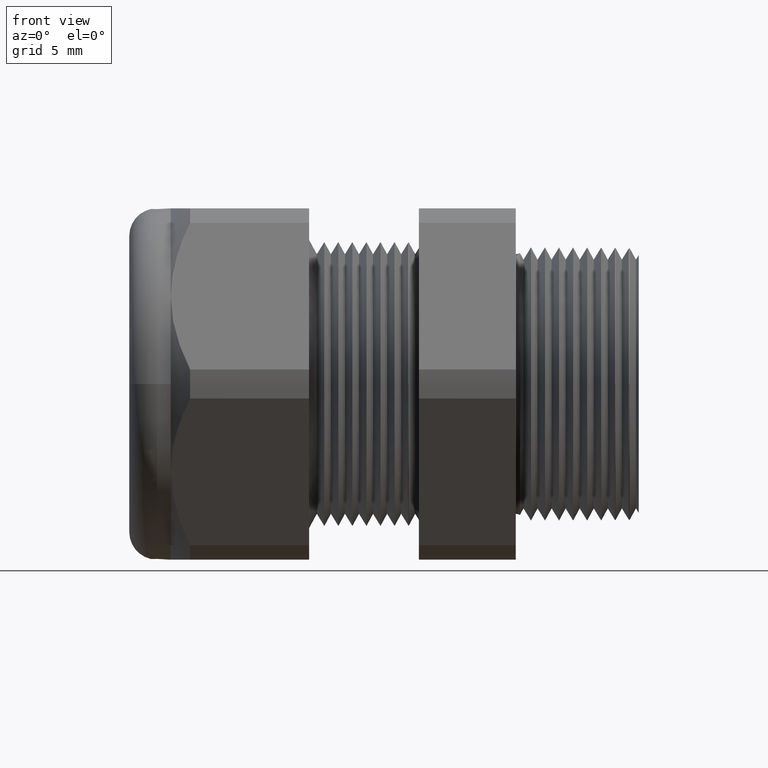
[diagram: clean part render]
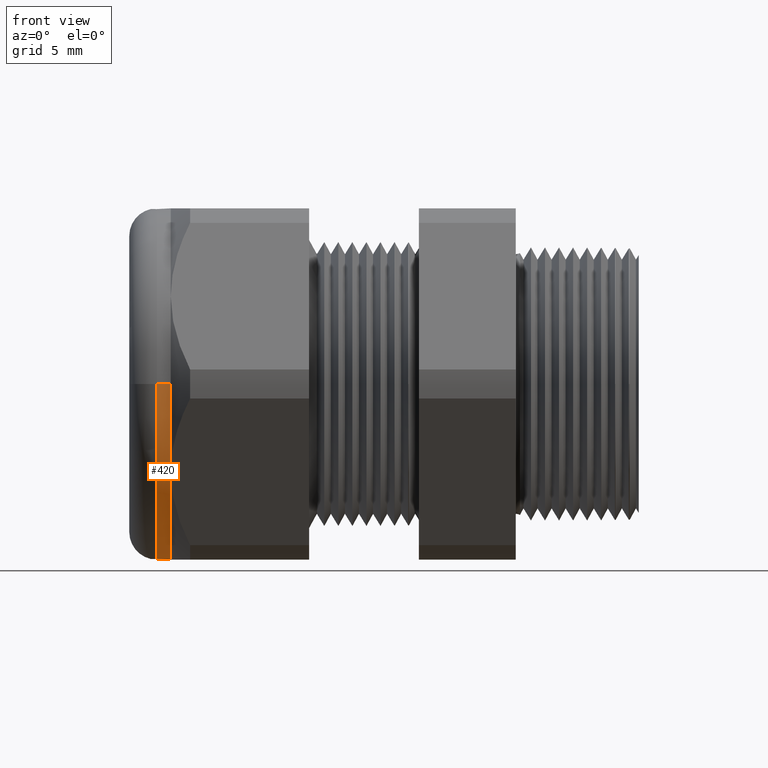
[diagram: same view with one face highlighted and labeled with its STEP entity id]
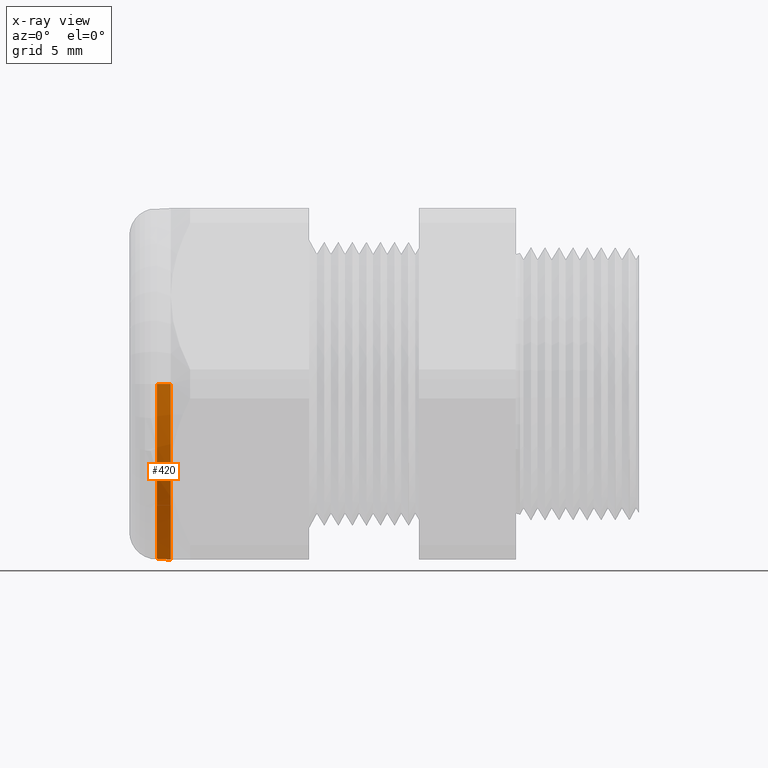
[diagram: x-ray of the same camera — body ghosted, the highlighted face saturated]
A machine part, front view. The second image highlights one B-rep face of the part: STEP entity #420.
The next image is the same camera in x-ray: the body ghosted, the highlighted face saturated — about 0% of this face is hidden behind the body in this view.
In plain terms, the highlighted cylindrical surface (partial cylindrical patch) has radius 12.7 mm, axis along (1, -0, 0).
Its self-contained STEP definition (entity closure, byte-faithful):
#158 = VERTEX_POINT ( 'NONE', #1652 ) ;
#160 = EDGE_CURVE ( 'NONE', #1006, #158, #1651, .T. ) ;
#174 = EDGE_CURVE ( 'NONE', #1007, #175, #1694, .T. ) ;
#175 = VERTEX_POINT ( 'NONE', #1686 ) ;
#406 = EDGE_CURVE ( 'NONE', #3890, #3889, #2163, .T. ) ;
#407 = ORIENTED_EDGE ( 'NONE', *, *, #408, .F. ) ;
#408 = EDGE_CURVE ( 'NONE', #175, #3890, #2158, .T. ) ;
#420 = ADVANCED_FACE ( 'NONE', ( #2195 ), #2194, .T. ) ;
#421 = EDGE_LOOP ( 'NONE', ( #422, #481, #483, #484, #486, #488, #407 ) ) ;
#422 = ORIENTED_EDGE ( 'NONE', *, *, #174, .F. ) ;
#481 = ORIENTED_EDGE ( 'NONE', *, *, #482, .T. ) ;
#482 = EDGE_CURVE ( 'NONE', #1007, #1006, #2288, .T. ) ;
#483 = ORIENTED_EDGE ( 'NONE', *, *, #160, .T. ) ;
#484 = ORIENTED_EDGE ( 'NONE', *, *, #485, .F. ) ;
#485 = EDGE_CURVE ( 'NONE', #3920, #158, #2283, .T. ) ;
#486 = ORIENTED_EDGE ( 'NONE', *, *, #487, .F. ) ;
#487 = EDGE_CURVE ( 'NONE', #3889, #3920, #2279, .T. ) ;
#488 = ORIENTED_EDGE ( 'NONE', *, *, #406, .F. ) ;
#1006 = VERTEX_POINT ( 'NONE', #3008 ) ;
#1007 = VERTEX_POINT ( 'NONE', #3007 ) ;
#1648 = DIRECTION ( 'NONE',  ( 1.000000000000000000, -3.749030204222210100E-017, 0.0000000000000000000 ) ) ;
#1649 = VECTOR ( 'NONE', #1648, 39.37007874015748100 ) ;
#1650 = CARTESIAN_POINT ( 'NONE',  ( -0.8981889763779525900, 0.4999999999999998300, 0.0000000000000000000 ) ) ;
#1651 = LINE ( 'NONE', #1650, #1649 ) ;
#1652 = CARTESIAN_POINT ( 'NONE',  ( -1.291889763779527500, 0.4999999999999997800, 0.0000000000000000000 ) ) ;
#1686 = CARTESIAN_POINT ( 'NONE',  ( -1.291889763779527500, -0.5000000000000001100, 6.123233995736764800E-017 ) ) ;
#1687 = DIRECTION ( 'NONE',  ( 1.000000000000000000, -3.749030204222210100E-017, 0.0000000000000000000 ) ) ;
#1688 = VECTOR ( 'NONE', #1687, 39.37007874015748100 ) ;
#1689 = CARTESIAN_POINT ( 'NONE',  ( -0.8981889763779525900, -0.5000000000000001100, 6.123233995736766000E-017 ) ) ;
#1694 = LINE ( 'NONE', #1689, #1688 ) ;
#2154 = DIRECTION ( 'NONE',  ( 0.0000000000000000000, 1.000000000000000000, 0.0000000000000000000 ) ) ;
#2155 = DIRECTION ( 'NONE',  ( 1.000000000000000000, -3.749030204222210100E-017, 0.0000000000000000000 ) ) ;
#2156 = CARTESIAN_POINT ( 'NONE',  ( -1.291889763779527500, -1.218324382492673400E-016, 0.0000000000000000000 ) ) ;
#2157 = AXIS2_PLACEMENT_3D ( 'NONE', #2156, #2155, #2154 ) ;
#2158 = CIRCLE ( 'NONE', #2157, 0.4999999999999999400 ) ;
#2159 = DIRECTION ( 'NONE',  ( 0.0000000000000000000, 1.000000000000000000, 0.0000000000000000000 ) ) ;
#2160 = DIRECTION ( 'NONE',  ( 1.000000000000000000, -3.749030204222210100E-017, 0.0000000000000000000 ) ) ;
#2161 = CARTESIAN_POINT ( 'NONE',  ( -1.291889763779527500, -1.218324382492673400E-016, 0.0000000000000000000 ) ) ;
#2162 = AXIS2_PLACEMENT_3D ( 'NONE', #2161, #2160, #2159 ) ;
#2163 = CIRCLE ( 'NONE', #2162, 0.4999999999999999400 ) ;
#2189 = DIRECTION ( 'NONE',  ( 0.0000000000000000000, 1.000000000000000000, 0.0000000000000000000 ) ) ;
#2190 = DIRECTION ( 'NONE',  ( 1.000000000000000000, -3.749030204222210100E-017, 0.0000000000000000000 ) ) ;
#2191 = CARTESIAN_POINT ( 'NONE',  ( -0.8981889763779525900, -1.365923996832130400E-016, 0.0000000000000000000 ) ) ;
#2192 = AXIS2_PLACEMENT_3D ( 'NONE', #2191, #2190, #2189 ) ;
#2194 = CYLINDRICAL_SURFACE ( 'NONE', #2192, 0.5000000000000000000 ) ;
#2195 = FACE_OUTER_BOUND ( 'NONE', #421, .T. ) ;
#2275 = DIRECTION ( 'NONE',  ( 0.0000000000000000000, 1.000000000000000000, 0.0000000000000000000 ) ) ;
#2276 = DIRECTION ( 'NONE',  ( 1.000000000000000000, -3.749030204222210100E-017, 0.0000000000000000000 ) ) ;
#2277 = CARTESIAN_POINT ( 'NONE',  ( -1.291889763779527500, -1.218324382492673400E-016, 0.0000000000000000000 ) ) ;
#2278 = AXIS2_PLACEMENT_3D ( 'NONE', #2277, #2276, #2275 ) ;
#2279 = CIRCLE ( 'NONE', #2278, 0.4999999999999999400 ) ;
#2280 = DIRECTION ( 'NONE',  ( 0.0000000000000000000, 1.000000000000000000, 0.0000000000000000000 ) ) ;
#2281 = DIRECTION ( 'NONE',  ( 1.000000000000000000, -3.749030204222210100E-017, 0.0000000000000000000 ) ) ;
#2282 = AXIS2_PLACEMENT_3D ( 'NONE', #2289, #2281, #2280 ) ;
#2283 = CIRCLE ( 'NONE', #2282, 0.4999999999999999400 ) ;
#2284 = DIRECTION ( 'NONE',  ( 0.0000000000000000000, -1.000000000000000000, 0.0000000000000000000 ) ) ;
#2285 = DIRECTION ( 'NONE',  ( 1.000000000000000000, -3.749030204222210100E-017, 0.0000000000000000000 ) ) ;
#2286 = CARTESIAN_POINT ( 'NONE',  ( -1.331259842519684900, -1.203564421058727600E-016, 0.0000000000000000000 ) ) ;
#2287 = AXIS2_PLACEMENT_3D ( 'NONE', #2286, #2285, #2284 ) ;
#2288 = CIRCLE ( 'NONE', #2287, 0.5000000000000000000 ) ;
#2289 = CARTESIAN_POINT ( 'NONE',  ( -1.291889763779527500, -1.218324382492673400E-016, 0.0000000000000000000 ) ) ;
#3007 = CARTESIAN_POINT ( 'NONE',  ( -1.331259842519684900, -0.5000000000000001100, 6.123233995736766000E-017 ) ) ;
#3008 = CARTESIAN_POINT ( 'NONE',  ( -1.331259842519684900, 0.4999999999999998300, 0.0000000000000000000 ) ) ;
#3675 = CARTESIAN_POINT ( 'NONE',  ( -1.291889763779527500, -0.4330127018922193000, -0.2500000000000000000 ) ) ;
#3676 = CARTESIAN_POINT ( 'NONE',  ( -1.291889763779527500, 4.843333744934944300E-017, -0.5000000000000000000 ) ) ;
#3772 = CARTESIAN_POINT ( 'NONE',  ( -1.291889763779527500, 0.4330127018922195800, -0.2499999999999999700 ) ) ;
#3889 = VERTEX_POINT ( 'NONE', #3676 ) ;
#3890 = VERTEX_POINT ( 'NONE', #3675 ) ;
#3920 = VERTEX_POINT ( 'NONE', #3772 ) ;